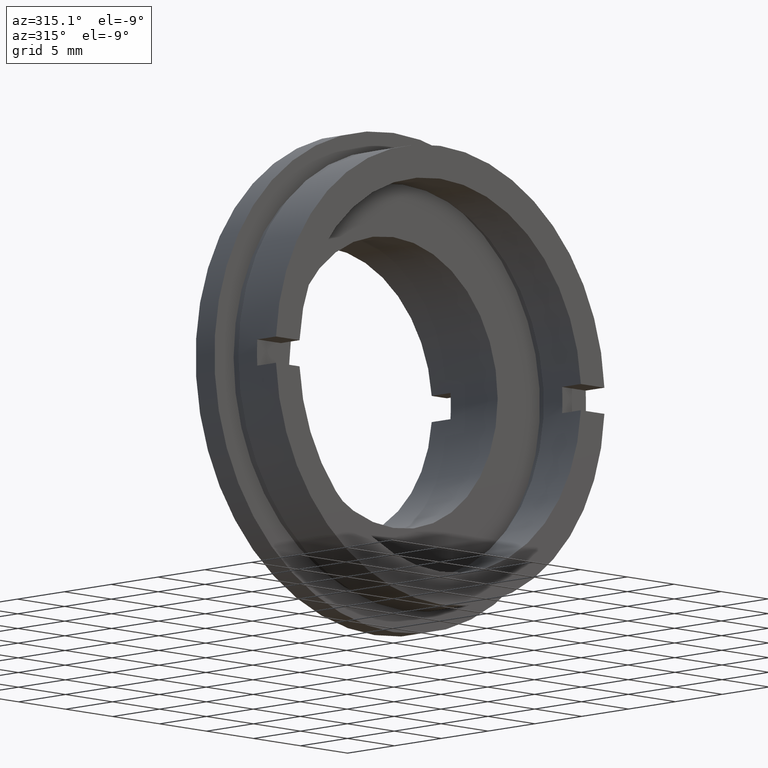
[diagram: clean part render]
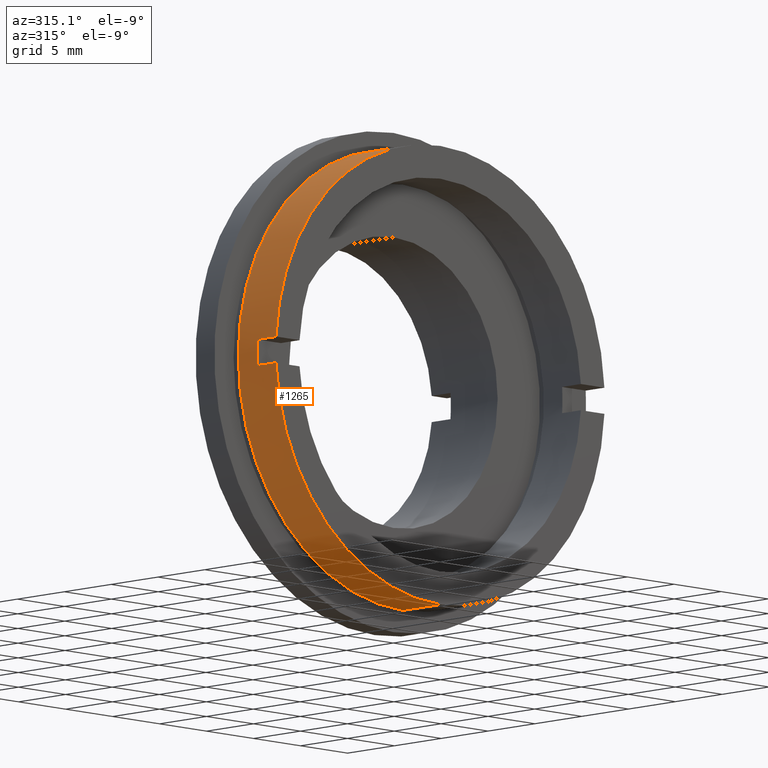
[diagram: same view with one face highlighted and labeled with its STEP entity id]
A machine part, auxiliary view. The second image highlights one B-rep face of the part: STEP entity #1265.
In plain terms, the highlighted cylindrical surface (partial cylindrical patch) has radius 17.5 mm, axis along (-0, 1, -0).
Its self-contained STEP definition (entity closure, byte-faithful):
#4 = FACE_OUTER_BOUND ( 'NONE', #643, .T. ) ;
#6 = DIRECTION ( 'NONE',  ( -0.0000000000000000000, 1.000000000000000000, -0.0000000000000000000 ) ) ;
#81 = EDGE_CURVE ( 'NONE', #1302, #555, #1237, .T. ) ;
#105 = CARTESIAN_POINT ( 'NONE',  ( 0.0000000000000000000, 4.000000000000000000, 0.0000000000000000000 ) ) ;
#150 = CARTESIAN_POINT ( 'NONE',  ( -17.47140520965614400, 22.67749945107591400, 1.000000000000003800 ) ) ;
#158 = CARTESIAN_POINT ( 'NONE',  ( -17.47140520965614400, 1.999999999999998200, 1.000000000000000200 ) ) ;
#168 = AXIS2_PLACEMENT_3D ( 'NONE', #1013, #993, #219 ) ;
#178 = VECTOR ( 'NONE', #985, 1000.000000000000000 ) ;
#198 = CARTESIAN_POINT ( 'NONE',  ( 2.143131898507867900E-015, 0.0000000000000000000, -17.49999999999999600 ) ) ;
#218 = ORIENTED_EDGE ( 'NONE', *, *, #934, .T. ) ;
#219 = DIRECTION ( 'NONE',  ( 0.0000000000000000000, 0.0000000000000000000, 1.000000000000000000 ) ) ;
#241 = DIRECTION ( 'NONE',  ( -0.0000000000000000000, 1.000000000000000000, -0.0000000000000000000 ) ) ;
#248 = DIRECTION ( 'NONE',  ( 0.0000000000000000000, 0.0000000000000000000, 1.000000000000000000 ) ) ;
#255 = DIRECTION ( 'NONE',  ( 0.0000000000000000000, 0.0000000000000000000, 1.000000000000000000 ) ) ;
#276 = EDGE_CURVE ( 'NONE', #505, #502, #1314, .T. ) ;
#291 = CIRCLE ( 'NONE', #533, 17.49999999999999600 ) ;
#305 = AXIS2_PLACEMENT_3D ( 'NONE', #997, #919, #446 ) ;
#312 = VECTOR ( 'NONE', #340, 1000.000000000000000 ) ;
#340 = DIRECTION ( 'NONE',  ( -0.0000000000000000000, 1.000000000000000000, -0.0000000000000000000 ) ) ;
#343 = CARTESIAN_POINT ( 'NONE',  ( -17.47140520965614400, 2.000000000000000000, -0.9999999999999995600 ) ) ;
#364 = CARTESIAN_POINT ( 'NONE',  ( -17.47140520965614400, 22.67749945107591400, -0.9999999999999943400 ) ) ;
#378 = EDGE_CURVE ( 'NONE', #1302, #1108, #291, .T. ) ;
#380 = CIRCLE ( 'NONE', #305, 17.49999999999999600 ) ;
#396 = DIRECTION ( 'NONE',  ( -0.0000000000000000000, -1.000000000000000000, -0.0000000000000000000 ) ) ;
#408 = ORIENTED_EDGE ( 'NONE', *, *, #893, .T. ) ;
#430 = ORIENTED_EDGE ( 'NONE', *, *, #378, .T. ) ;
#446 = DIRECTION ( 'NONE',  ( 0.0000000000000000000, 0.0000000000000000000, 1.000000000000000000 ) ) ;
#448 = VECTOR ( 'NONE', #1200, 1000.000000000000000 ) ;
#462 = CARTESIAN_POINT ( 'NONE',  ( 0.0000000000000000000, 22.67749945107591400, 17.49999999999999600 ) ) ;
#493 = AXIS2_PLACEMENT_3D ( 'NONE', #105, #241, #255 ) ;
#499 = EDGE_CURVE ( 'NONE', #555, #505, #749, .T. ) ;
#502 = VERTEX_POINT ( 'NONE', #666 ) ;
#505 = VERTEX_POINT ( 'NONE', #343 ) ;
#533 = AXIS2_PLACEMENT_3D ( 'NONE', #572, #796, #1127 ) ;
#555 = VERTEX_POINT ( 'NONE', #158 ) ;
#572 = CARTESIAN_POINT ( 'NONE',  ( 0.0000000000000000000, 0.0000000000000000000, 0.0000000000000000000 ) ) ;
#595 = CARTESIAN_POINT ( 'NONE',  ( -17.47140520965614400, 0.0000000000000000000, 1.000000000000000000 ) ) ;
#625 = ORIENTED_EDGE ( 'NONE', *, *, #829, .F. ) ;
#639 = EDGE_CURVE ( 'NONE', #1054, #1087, #670, .T. ) ;
#643 = EDGE_LOOP ( 'NONE', ( #625, #408, #867, #884, #1203, #430, #218, #1073 ) ) ;
#666 = CARTESIAN_POINT ( 'NONE',  ( -17.47140520965614400, 0.0000000000000000000, -1.000000000000000000 ) ) ;
#670 = CIRCLE ( 'NONE', #493, 17.49999999999999600 ) ;
#694 = LINE ( 'NONE', #1060, #312 ) ;
#749 = CIRCLE ( 'NONE', #931, 17.49999999999999600 ) ;
#796 = DIRECTION ( 'NONE',  ( -0.0000000000000000000, 1.000000000000000000, -0.0000000000000000000 ) ) ;
#798 = CARTESIAN_POINT ( 'NONE',  ( 0.0000000000000000000, 0.0000000000000000000, 17.49999999999999600 ) ) ;
#829 = EDGE_CURVE ( 'NONE', #1284, #1054, #694, .T. ) ;
#867 = ORIENTED_EDGE ( 'NONE', *, *, #276, .F. ) ;
#884 = ORIENTED_EDGE ( 'NONE', *, *, #499, .F. ) ;
#893 = EDGE_CURVE ( 'NONE', #1284, #502, #380, .T. ) ;
#919 = DIRECTION ( 'NONE',  ( -0.0000000000000000000, 1.000000000000000000, -0.0000000000000000000 ) ) ;
#931 = AXIS2_PLACEMENT_3D ( 'NONE', #1204, #396, #248 ) ;
#934 = EDGE_CURVE ( 'NONE', #1108, #1087, #1015, .T. ) ;
#985 = DIRECTION ( 'NONE',  ( -0.0000000000000000000, 1.000000000000000000, -0.0000000000000000000 ) ) ;
#993 = DIRECTION ( 'NONE',  ( -0.0000000000000000000, 1.000000000000000000, -0.0000000000000000000 ) ) ;
#997 = CARTESIAN_POINT ( 'NONE',  ( 0.0000000000000000000, 0.0000000000000000000, 0.0000000000000000000 ) ) ;
#1013 = CARTESIAN_POINT ( 'NONE',  ( 0.0000000000000000000, 22.67749945107591400, 0.0000000000000000000 ) ) ;
#1015 = LINE ( 'NONE', #462, #1101 ) ;
#1054 = VERTEX_POINT ( 'NONE', #1233 ) ;
#1060 = CARTESIAN_POINT ( 'NONE',  ( 2.143131898507867900E-015, 22.67749945107591400, -17.49999999999999600 ) ) ;
#1073 = ORIENTED_EDGE ( 'NONE', *, *, #639, .F. ) ;
#1079 = CARTESIAN_POINT ( 'NONE',  ( 0.0000000000000000000, 4.000000000000000000, 17.49999999999999600 ) ) ;
#1087 = VERTEX_POINT ( 'NONE', #1079 ) ;
#1101 = VECTOR ( 'NONE', #6, 1000.000000000000000 ) ;
#1108 = VERTEX_POINT ( 'NONE', #798 ) ;
#1127 = DIRECTION ( 'NONE',  ( 0.0000000000000000000, 0.0000000000000000000, 1.000000000000000000 ) ) ;
#1182 = CYLINDRICAL_SURFACE ( 'NONE', #168, 17.49999999999999600 ) ;
#1200 = DIRECTION ( 'NONE',  ( 0.0000000000000000000, -1.000000000000000000, 0.0000000000000000000 ) ) ;
#1203 = ORIENTED_EDGE ( 'NONE', *, *, #81, .F. ) ;
#1204 = CARTESIAN_POINT ( 'NONE',  ( 0.0000000000000000000, 1.999999999999998200, 0.0000000000000000000 ) ) ;
#1233 = CARTESIAN_POINT ( 'NONE',  ( 2.143131898507867900E-015, 4.000000000000000000, -17.49999999999999600 ) ) ;
#1237 = LINE ( 'NONE', #150, #178 ) ;
#1265 = ADVANCED_FACE ( 'NONE', ( #4 ), #1182, .T. ) ;
#1284 = VERTEX_POINT ( 'NONE', #198 ) ;
#1302 = VERTEX_POINT ( 'NONE', #595 ) ;
#1314 = LINE ( 'NONE', #364, #448 ) ;